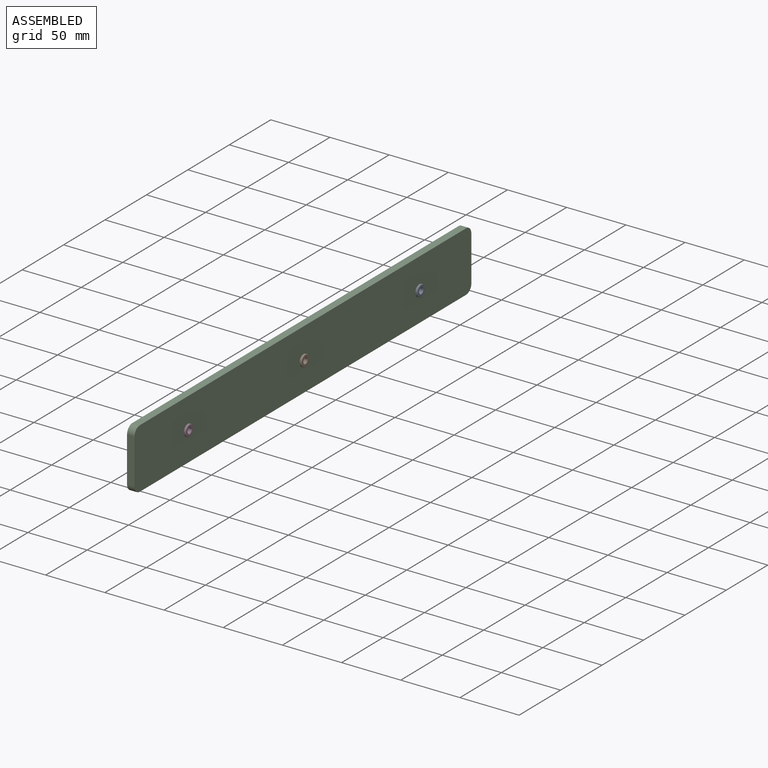
[diagram: assembled view]
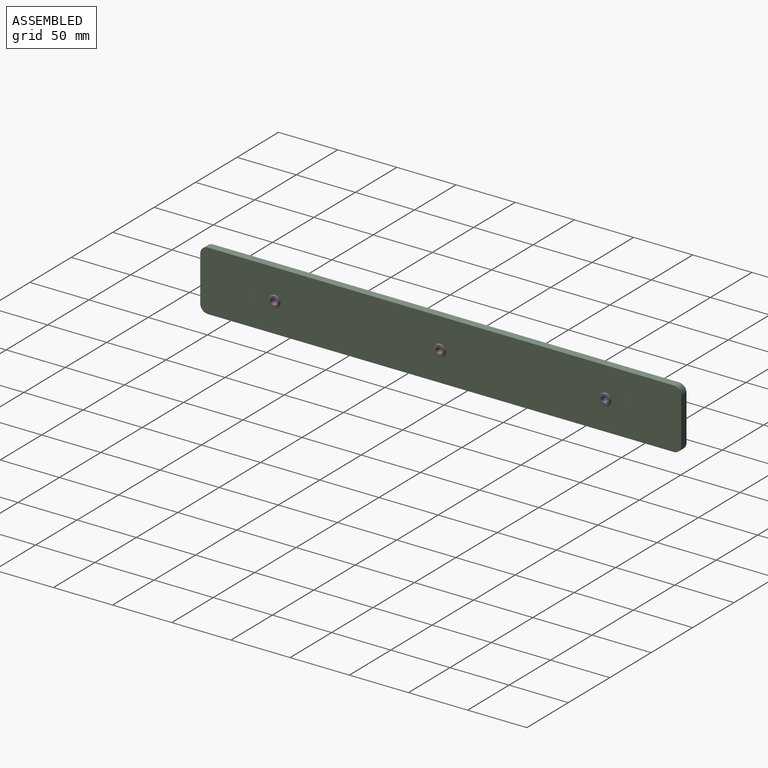
[diagram: assembled view, second angle]
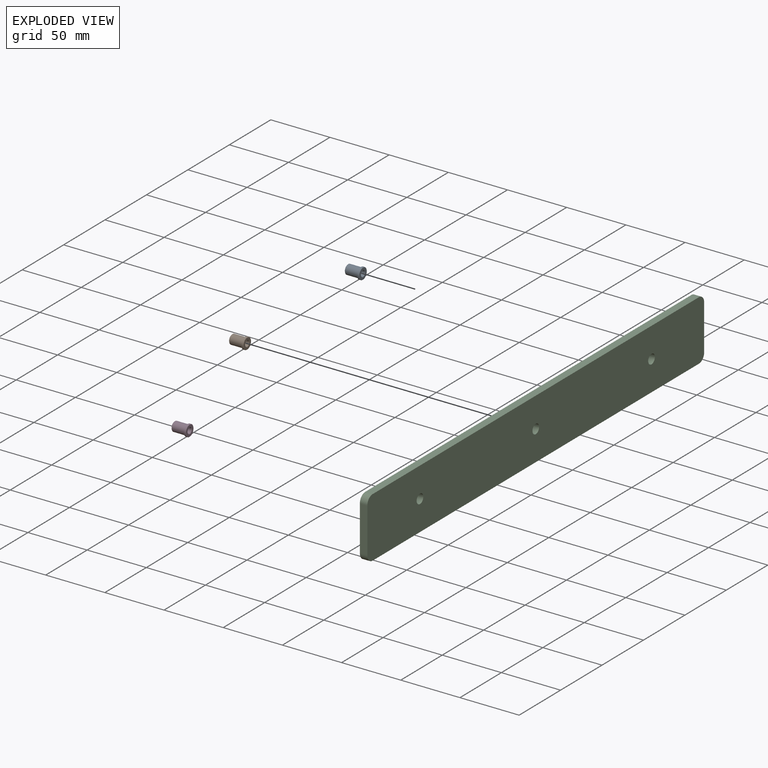
[diagram: exploded view]
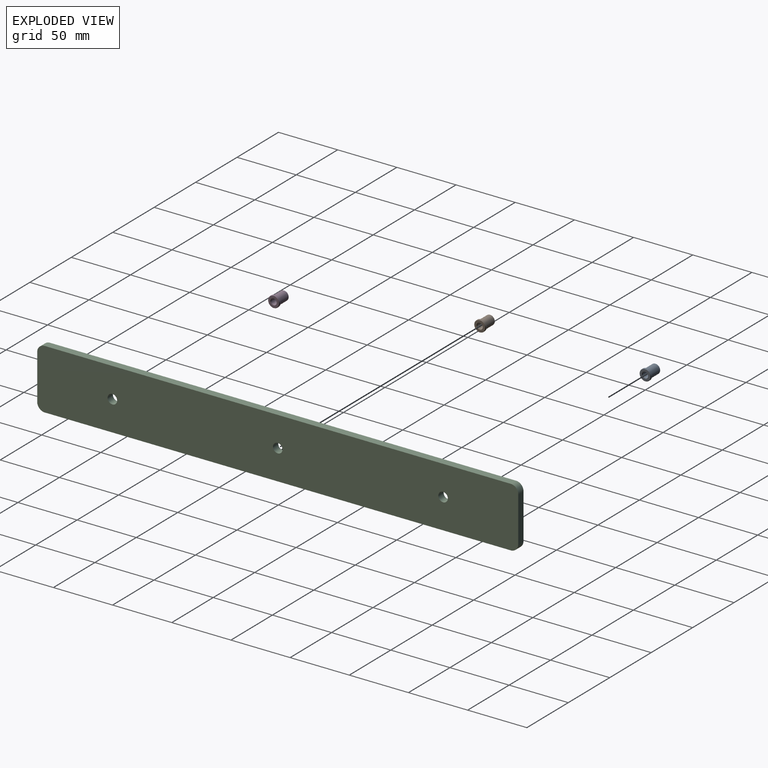
[diagram: exploded view, second angle]
ASSEMBLY  parts=4 mates=3
PART A: 17 faces, bbox 9.6x12.7x9.6 mm
  f0: cone r=0mm half-angle=45deg, axis (0,-1,0), area 4.3mm2, adj f1,f3,f4
  f1: cone r=0mm half-angle=45deg, axis (0,-1,0), area 4.3mm2, adj f0,f2,f4
  f2: cylinder r=4mm len=10.86mm, axis (0,-1,0), area 136.5mm2, adj f1,f3,f5
  f3: cylinder r=4mm len=10.86mm, axis (0,-1,0), area 136.5mm2, adj f0,f2,f5
  f4: plane 7.52x7.5mm, normal (0,1,0), area 22.5mm2, adj f0,f1,f6,f7
  f5: plane 9.58x9.56mm, normal (0,1,0), area 21.5mm2, adj f2,f3,f8,f9
  f6: cone r=0mm half-angle=45deg, axis (0,1,0), area 2.8mm2, adj f4,f7,f10
  f7: cone r=0mm half-angle=45deg, axis (0,1,0), area 2.8mm2, adj f4,f6,f11
  f8: cylinder r=4.78mm len=9.56mm, axis (0,-1,0), area 20.3mm2, adj f5,f9,f12
  f9: cylinder r=4.78mm len=9.56mm, axis (0,-1,0), area 20.3mm2, adj f5,f8,f13
  f10: cylinder r=2.38mm len=12.21mm, axis (0,-1,0), area 91.1mm2, adj f6,f11,f14
  f11: cylinder r=2.38mm len=12.21mm, axis (0,-1,0), area 91.1mm2, adj f7,f10,f15
  f12: cone r=0mm half-angle=45deg, axis (0,1,0), area 5.2mm2, adj f8,f13,f16
  f13: cone r=0mm half-angle=45deg, axis (0,1,0), area 5.2mm2, adj f9,f12,f16
  f14: cone r=0mm half-angle=45deg, axis (0,-1,0), area 2.8mm2, adj f10,f15,f16
  f15: cone r=0mm half-angle=45deg, axis (0,-1,0), area 2.8mm2, adj f11,f14,f16
  f16: plane 9.07x9.06mm, normal (0,-1,0), area 42.8mm2, adj f12,f13,f14,f15
PART B: same geometry as A
PART C: 13 faces, bbox 6.4x406.4x50.8 mm
  f0: plane 393.7x6.35mm, normal (0,0,1), area 2500mm2, adj f1,f10,f11,f12
  f1: cylinder r=6.35mm len=6.35mm, axis (-1,0,0), area 63.3mm2, adj f0,f2,f11,f12
  f2: plane 38.1x6.35mm, normal (0,-1,0), area 241.9mm2, adj f1,f3,f11,f12
  f3: cylinder r=6.35mm len=6.35mm, axis (-1,0,0), area 63.3mm2, adj f2,f4,f11,f12
  f4: plane 393.7x6.35mm, normal (0,0,-1), area 2500mm2, adj f3,f5,f11,f12
  f5: cylinder r=6.35mm len=6.35mm, axis (-1,0,0), area 63.3mm2, adj f4,f6,f11,f12
  f6: plane 38.1x6.35mm, normal (0,1,0), area 241.9mm2, adj f5,f10,f11,f12
  f7: cylinder r=4mm len=8mm, axis (-1,0,0), area 159.6mm2, adj f11,f12
  f8: cylinder r=4mm len=8mm, axis (-1,0,0), area 159.6mm2, adj f11,f12
  f9: cylinder r=4mm len=8mm, axis (-1,0,0), area 159.6mm2, adj f11,f12
  f10: cylinder r=6.35mm len=6.35mm, axis (-1,0,0), area 63.3mm2, adj f0,f6,f11,f12
  f11: plane 406.4x50.8mm, normal (1,0,0), area 20459.7mm2, adj f0,f1,f2,f3,f4,f5,f6,f7
  f12: plane 406.4x50.8mm, normal (-1,0,0), area 20459.7mm2, adj f0,f1,f2,f3,f4,f5,f6,f7
PART D: same geometry as A
PLACE A rot(axis=(-0.58,0.58,0.58),120deg) t=(34.88,124.81,-2.72)mm
PLACE B rot(axis=(-0.58,0.58,0.58),120deg) t=(34.88,-14.89,-2.72)mm
PLACE C t=(26.38,-14.89,-2.72)mm
PLACE D rot(axis=(-0.58,0.58,0.58),120deg) t=(34.88,-154.59,-2.72)mm
MATE revolute D.f0 <-> C.f8  axis (1,0,0) through (34.63,-154.59,-2.72)mm
MATE revolute A.f0 <-> C.f9  axis (1,0,0) through (34.63,124.81,-2.72)mm
MATE revolute B.f0 <-> C.f7  axis (1,0,0) through (34.63,-14.89,-2.72)mm
